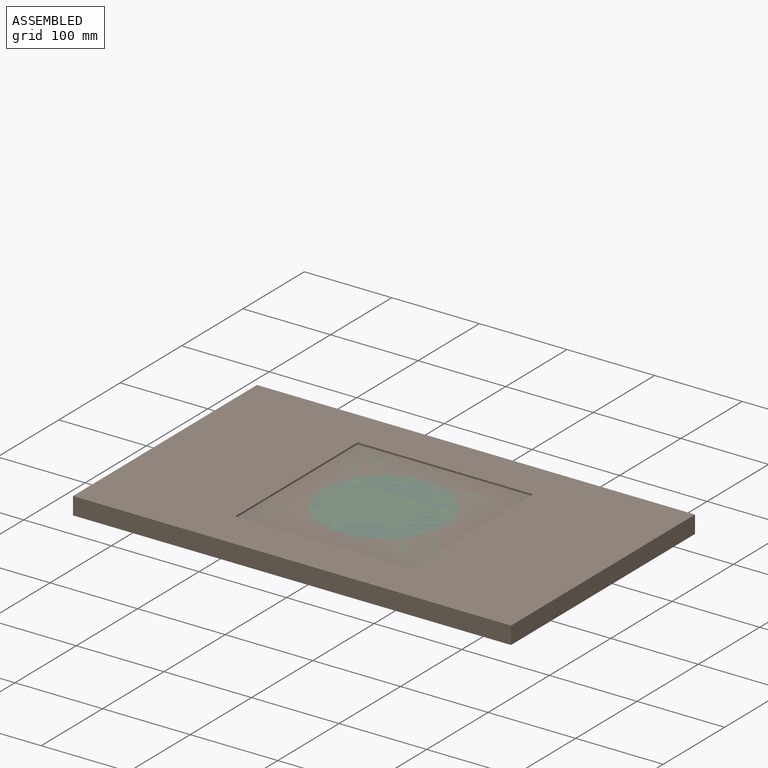
[diagram: assembled view]
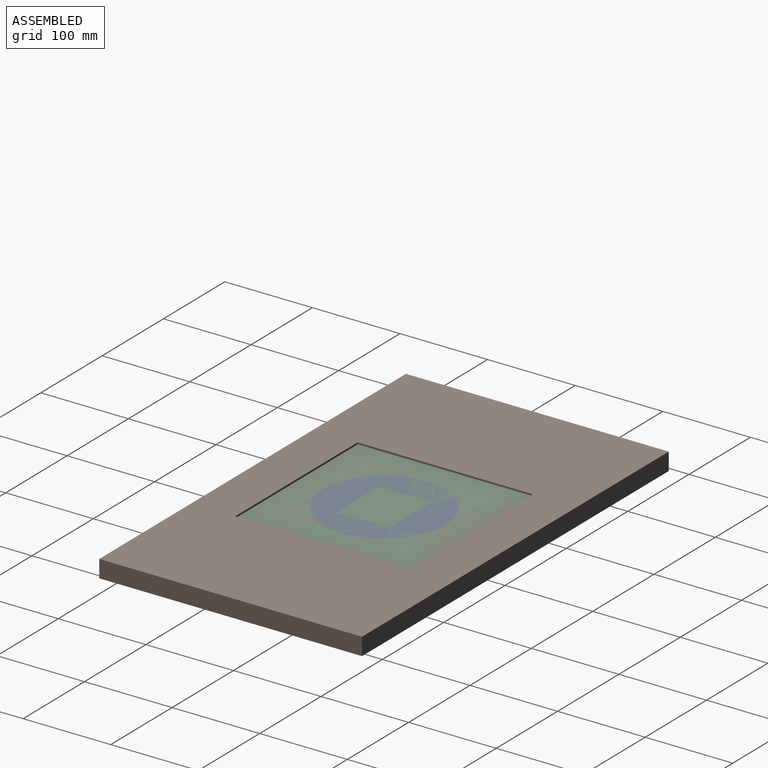
[diagram: assembled view, second angle]
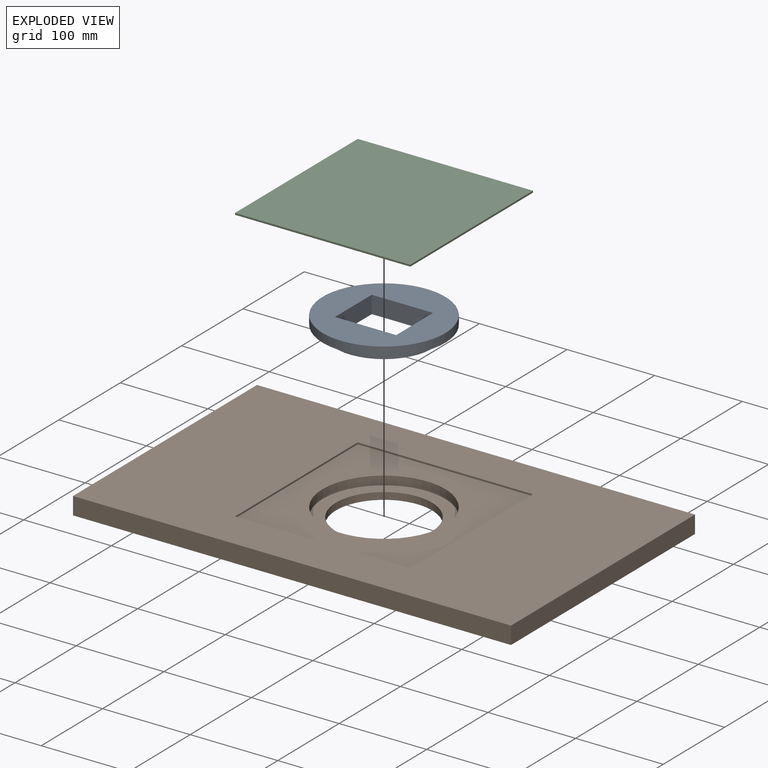
[diagram: exploded view]
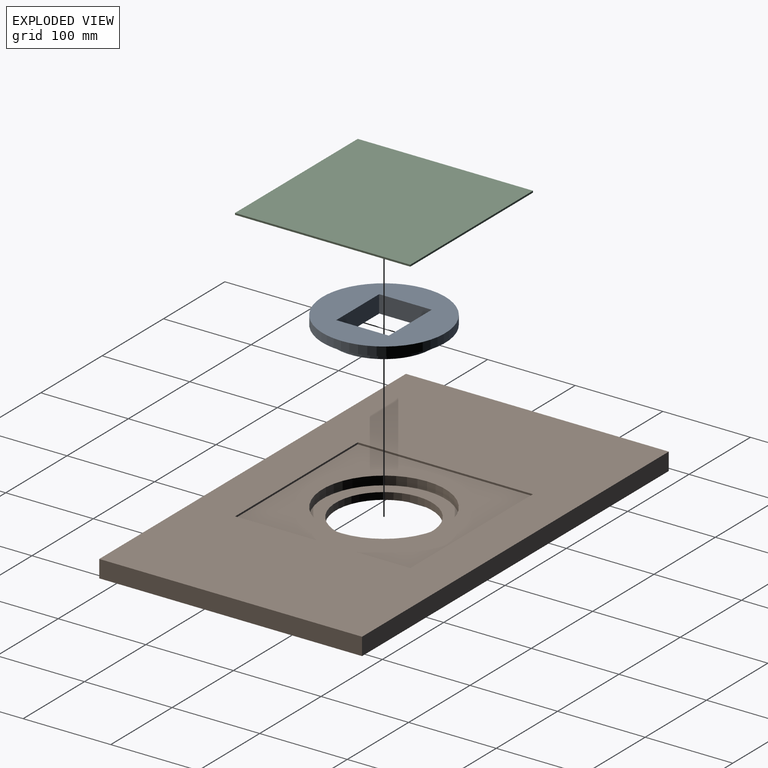
[diagram: exploded view, second angle]
ASSEMBLY  parts=3 mates=2
PART A: 9 faces, bbox 140x140x20 mm
  f0: plane 140x140mm, normal (0,0,1), area 11193.8mm2, adj f2,f3,f4,f5,f6
  f1: plane 140x140mm, normal (0,0,-1), area 5890.5mm2, adj f2,f8
  f2: cylinder r=70mm len=140mm, axis (0,0,-1), area 4398.2mm2, adj f0,f1
  f3: plane 70x20mm, normal (0,1,0), area 1400mm2, adj f0,f4,f6,f7
  f4: plane 60x20mm, normal (1,0,0), area 1200mm2, adj f0,f3,f5,f7
  f5: plane 70x20mm, normal (0,-1,0), area 1400mm2, adj f0,f4,f6,f7
  f6: plane 60x20mm, normal (-1,0,0), area 1200mm2, adj f0,f3,f5,f7
  f7: plane 110x110mm, normal (0,0,-1), area 5303.3mm2, adj f3,f4,f5,f6,f8
  f8: cylinder r=55mm len=110mm, axis (0,0,1), area 3455.8mm2, adj f1,f7
PART B: 14 faces, bbox 500x300x20 mm
  f0: plane 500x300mm, normal (0,0,1), area 110000mm2, adj f1,f2,f3,f4,f6,f7,f8,f9
  f1: plane 500x20mm, normal (0,1,0), area 10000mm2, adj f0,f2,f4,f5
  f2: plane 300x20mm, normal (-1,0,0), area 6000mm2, adj f0,f1,f3,f5
  f3: plane 500x20mm, normal (0,-1,0), area 10000mm2, adj f0,f2,f4,f5
  f4: plane 300x20mm, normal (1,0,0), area 6000mm2, adj f0,f1,f3,f5
  f5: plane 500x300mm, normal (0,0,-1), area 140496.7mm2, adj f1,f2,f3,f4,f13
  f6: plane 200x2mm, normal (-1,0,0), area 400mm2, adj f0,f7,f9,f10
  f7: plane 200x2mm, normal (0,-1,0), area 400mm2, adj f0,f6,f8,f10
  f8: plane 200x2mm, normal (1,0,0), area 400mm2, adj f0,f7,f9,f10
  f9: plane 200x2mm, normal (0,1,0), area 400mm2, adj f0,f6,f8,f10
  f10: plane 200x200mm, normal (0,0,1), area 24606.2mm2, adj f6,f7,f8,f9,f11
  f11: cylinder r=70mm len=140mm, axis (0,0,1), area 4398.2mm2, adj f10,f12
  f12: plane 140x140mm, normal (0,0,1), area 5890.5mm2, adj f11,f13
  f13: cylinder r=55mm len=110mm, axis (0,0,1), area 2764.6mm2, adj f5,f12
PART C: 6 faces, bbox 200x200x2 mm
  f0: plane 200x2mm, normal (0,1,0), area 400mm2, adj f1,f3,f4,f5
  f1: plane 200x2mm, normal (-1,0,0), area 400mm2, adj f0,f2,f4,f5
  f2: plane 200x2mm, normal (0,-1,0), area 400mm2, adj f1,f3,f4,f5
  f3: plane 200x2mm, normal (1,0,0), area 400mm2, adj f0,f2,f4,f5
  f4: plane 200x200mm, normal (0,0,1), area 40000mm2, adj f0,f1,f2,f3
  f5: plane 200x200mm, normal (0,0,-1), area 40000mm2, adj f0,f1,f2,f3
PLACE A t=(145.57,193.77,154.59)mm
PLACE B t=(145.57,193.77,146.59)mm
PLACE C rot(axis=(0,0,-1),90deg) t=(145.57,195.72,162.59)mm
MATE revolute B.f11 <-> A.f2  axis (0,0,1) through (145.57,193.77,164.59)mm
MATE fastened C.f4 <-> B.f10  axis (0,0,1) through (145.57,293.77,164.59)mm
